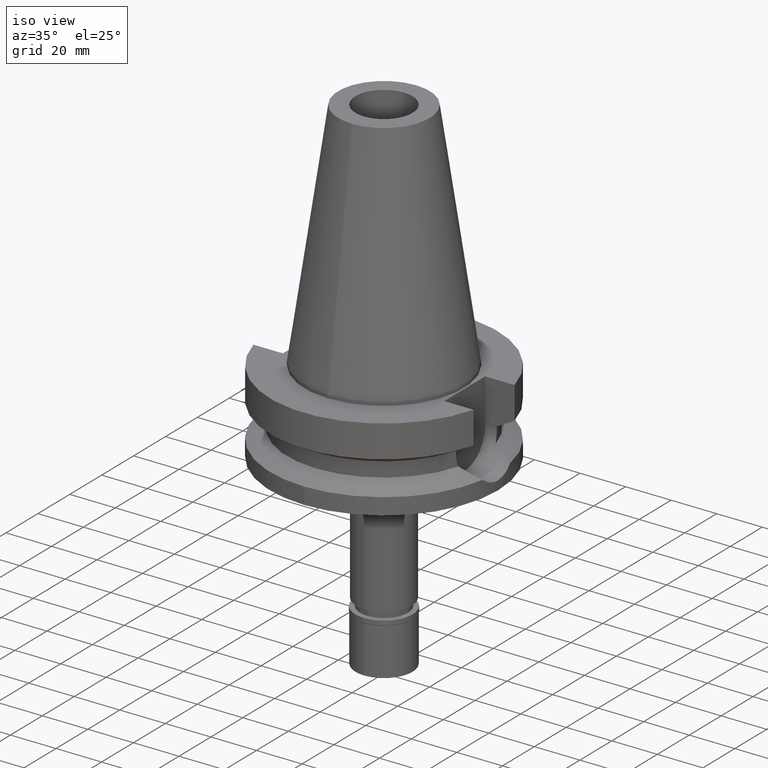
[diagram: clean part render]
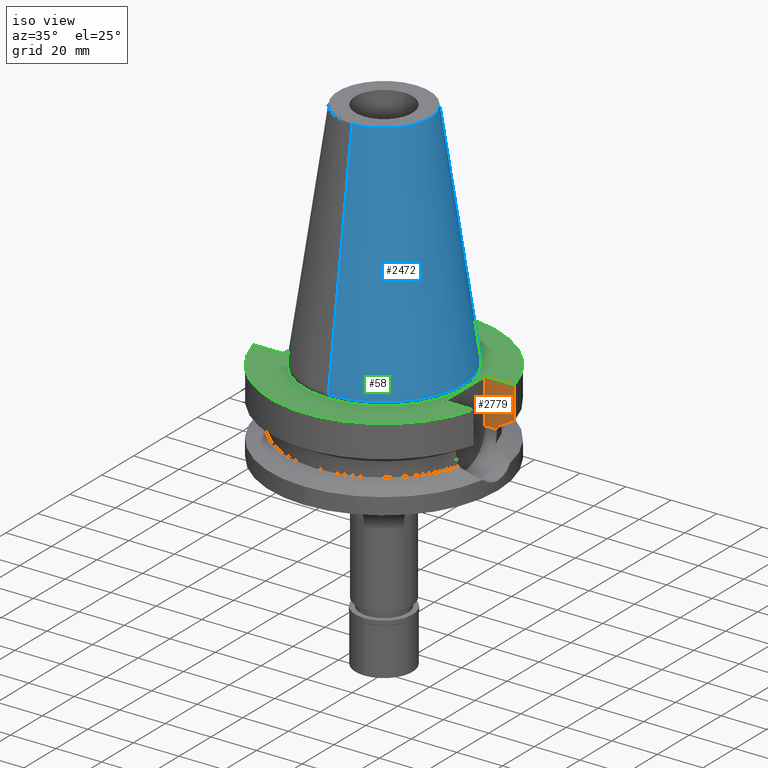
[diagram: same view with three faces highlighted in distinct colors, each labeled with its STEP entity id]
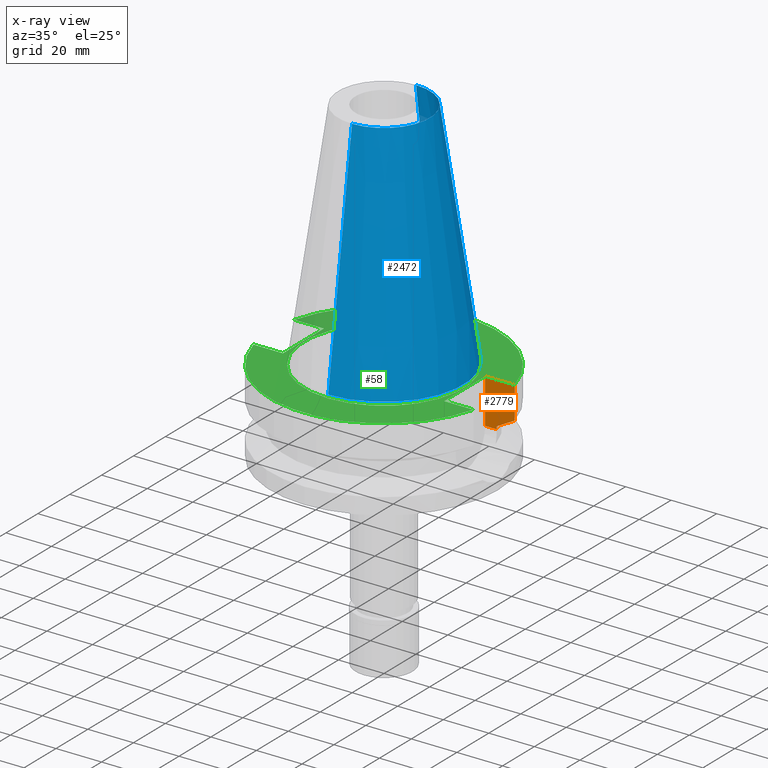
[diagram: x-ray of the same camera — body ghosted, the three highlighted faces saturated]
A machine part, iso view with three faces highlighted in distinct colors.
The next image is the same camera in x-ray (body ghosted, the three faces saturated) — at least one of them is partly hidden behind the body in this view.
Their STEP definitions:

[orange] entity #2779 — the highlighted planar face has unit normal (0, 1, 0).
#19 = ORIENTED_EDGE ( 'NONE', *, *, #1257, .T. ) ;
#29 = VECTOR ( 'NONE', #206, 1000.000000000000000 ) ;
#150 = EDGE_CURVE ( 'NONE', #1797, #913, #1164, .T. ) ;
#163 = ORIENTED_EDGE ( 'NONE', *, *, #1358, .T. ) ;
#206 = DIRECTION ( 'NONE',  ( 0.0000000000000000000, 0.0000000000000000000, -1.000000000000000000 ) ) ;
#269 = VERTEX_POINT ( 'NONE', #1355 ) ;
#300 = VERTEX_POINT ( 'NONE', #2832 ) ;
#316 = CARTESIAN_POINT ( 'NONE',  ( 40.51083188481999997, 12.84999999999999964, -21.14999999999999858 ) ) ;
#369 = PLANE ( 'NONE',  #840 ) ;
#377 = VECTOR ( 'NONE', #2846, 1000.000000000000114 ) ;
#562 = CARTESIAN_POINT ( 'NONE',  ( 40.51083188481999997, 12.84999999999999964, -21.14999999999999858 ) ) ;
#585 = LINE ( 'NONE', #562, #1144 ) ;
#590 = CARTESIAN_POINT ( 'NONE',  ( 48.32056912878999810, 12.85000385484999974, -15.66265770431999726 ) ) ;
#612 = ORIENTED_EDGE ( 'NONE', *, *, #1708, .T. ) ;
#719 = VERTEX_POINT ( 'NONE', #316 ) ;
#732 = EDGE_LOOP ( 'NONE', ( #2876, #2655, #1443, #19, #612, #163 ) ) ;
#817 = DIRECTION ( 'NONE',  ( 1.000000000000000000, 0.0000000000000000000, 0.0000000000000000000 ) ) ;
#840 = AXIS2_PLACEMENT_3D ( 'NONE', #2030, #2992, #817 ) ;
#913 = VERTEX_POINT ( 'NONE', #2214 ) ;
#1054 = CARTESIAN_POINT ( 'NONE',  ( 35.39999999999999858, 12.84999999999999964, -1.500000000000000000 ) ) ;
#1065 = FACE_OUTER_BOUND ( 'NONE', #732, .T. ) ;
#1083 = LINE ( 'NONE', #2764, #2320 ) ;
#1144 = VECTOR ( 'NONE', #1751, 1000.000000000000227 ) ;
#1164 = LINE ( 'NONE', #3061, #377 ) ;
#1257 = EDGE_CURVE ( 'NONE', #269, #300, #1488, .T. ) ;
#1355 = CARTESIAN_POINT ( 'NONE',  ( 35.39999999999999858, 12.84999999999999964, -1.500000000000000000 ) ) ;
#1358 = EDGE_CURVE ( 'NONE', #719, #1706, #585, .T. ) ;
#1443 = ORIENTED_EDGE ( 'NONE', *, *, #1796, .F. ) ;
#1488 = LINE ( 'NONE', #2426, #29 ) ;
#1706 = VERTEX_POINT ( 'NONE', #2321 ) ;
#1708 = EDGE_CURVE ( 'NONE', #300, #719, #1083, .T. ) ;
#1751 = DIRECTION ( 'NONE',  ( 9.450376545189141521E-07, -2.979322488675045288E-06, 0.9999999999951152407 ) ) ;
#1796 = EDGE_CURVE ( 'NONE', #269, #913, #3037, .T. ) ;
#1797 = VERTEX_POINT ( 'NONE', #590 ) ;
#1817 = DIRECTION ( 'NONE',  ( 1.000000000000000000, -3.336643826789999529E-14, 0.0000000000000000000 ) ) ;
#1952 = EDGE_CURVE ( 'NONE', #1797, #1706, #2853, .T. ) ;
#2030 = CARTESIAN_POINT ( 'NONE',  ( 35.39999999999999858, 12.84999999999999964, -21.14999999999999858 ) ) ;
#2158 = CARTESIAN_POINT ( 'NONE',  ( 48.32056912878999810, 12.85000385484999974, -15.66265770431999726 ) ) ;
#2168 = VECTOR ( 'NONE', #2998, 1000.000000000000000 ) ;
#2214 = CARTESIAN_POINT ( 'NONE',  ( 48.32057015392000210, 12.84999999999999964, -1.500000000000000000 ) ) ;
#2320 = VECTOR ( 'NONE', #1817, 1000.000000000000000 ) ;
#2321 = CARTESIAN_POINT ( 'NONE',  ( 40.51083297836999719, 12.84999655245999861, -19.99284571208999850 ) ) ;
#2426 = CARTESIAN_POINT ( 'NONE',  ( 35.39999999999999858, 12.84999999999999964, -1.500000000000000000 ) ) ;
#2655 = ORIENTED_EDGE ( 'NONE', *, *, #150, .T. ) ;
#2764 = CARTESIAN_POINT ( 'NONE',  ( 35.39999999999999858, 12.84999999999999964, -21.14999999999999858 ) ) ;
#2779 = ADVANCED_FACE ( 'NONE', ( #1065 ), #369, .F. ) ;
#2832 = CARTESIAN_POINT ( 'NONE',  ( 35.39999999999999858, 12.84999999999999964, -21.14999999999999858 ) ) ;
#2838 = CARTESIAN_POINT ( 'NONE',  ( 42.90862459538747231, 12.84999309790769395, -18.67324797433769845 ) ) ;
#2846 = DIRECTION ( 'NONE',  ( 7.238254396727712599E-08, -2.721839296048891019E-07, 0.9999999999999603650 ) ) ;
#2853 = B_SPLINE_CURVE_WITH_KNOTS ( 'NONE', 3,
 ( #2158, #3110, #2838, #2890 ),
 .UNSPECIFIED., .F., .F.,
 ( 4, 4 ),
 ( 0.0000000000000000000, 1.000000000000000000 ),
 .UNSPECIFIED. ) ;
#2876 = ORIENTED_EDGE ( 'NONE', *, *, #1952, .F. ) ;
#2890 = CARTESIAN_POINT ( 'NONE',  ( 40.51083297836999719, 12.84999655245999861, -19.99284571208999850 ) ) ;
#2992 = DIRECTION ( 'NONE',  ( -0.0000000000000000000, 1.000000000000000000, 0.0000000000000000000 ) ) ;
#2998 = DIRECTION ( 'NONE',  ( 1.000000000000000000, 0.0000000000000000000, 0.0000000000000000000 ) ) ;
#3037 = LINE ( 'NONE', #1054, #2168 ) ;
#3061 = CARTESIAN_POINT ( 'NONE',  ( 48.32056912878999810, 12.85000385484999974, -15.66265770431999726 ) ) ;
#3110 = CARTESIAN_POINT ( 'NONE',  ( 45.51179872961361639, 12.85000770505238421, -17.22986721895876272 ) ) ;

[blue] entity #2472 — the highlighted conical surface has half-angle 8.297 deg.
#142 = FACE_OUTER_BOUND ( 'NONE', #771, .T. ) ;
#265 = CARTESIAN_POINT ( 'NONE',  ( 0.0000000000000000000, -34.92499999999999716, 4.476419235289000232E-13 ) ) ;
#277 = EDGE_CURVE ( 'NONE', #2784, #2004, #2087, .T. ) ;
#448 = CIRCLE ( 'NONE', #846, 34.92499999999999716 ) ;
#546 = CIRCLE ( 'NONE', #2271, 20.07942971896000017 ) ;
#645 = CARTESIAN_POINT ( 'NONE',  ( 0.0000000000000000000, -20.07942971896000017, 101.7999999999999972 ) ) ;
#647 = DIRECTION ( 'NONE',  ( 0.0000000000000000000, 0.0000000000000000000, -1.000000000000000000 ) ) ;
#688 = VECTOR ( 'NONE', #1752, 1000.000000000000114 ) ;
#771 = EDGE_LOOP ( 'NONE', ( #1835, #2794, #1190, #1254 ) ) ;
#846 = AXIS2_PLACEMENT_3D ( 'NONE', #2090, #2384, #1157 ) ;
#1119 = CARTESIAN_POINT ( 'NONE',  ( 0.0000000000000000000, 1.847992019912999597E-14, 50.89999999999999858 ) ) ;
#1142 = AXIS2_PLACEMENT_3D ( 'NONE', #1119, #647, #1868 ) ;
#1145 = DIRECTION ( 'NONE',  ( 0.0000000000000000000, 0.0000000000000000000, -1.000000000000000000 ) ) ;
#1157 = DIRECTION ( 'NONE',  ( 0.0000000000000000000, 1.000000000000000000, 0.0000000000000000000 ) ) ;
#1190 = ORIENTED_EDGE ( 'NONE', *, *, #1874, .F. ) ;
#1254 = ORIENTED_EDGE ( 'NONE', *, *, #2586, .F. ) ;
#1303 = CARTESIAN_POINT ( 'NONE',  ( 0.0000000000000000000, 20.07942971896000017, 101.7999999999999972 ) ) ;
#1410 = CARTESIAN_POINT ( 'NONE',  ( 0.0000000000000000000, 34.92499999999999716, 4.476419235289000232E-13 ) ) ;
#1623 = DIRECTION ( 'NONE',  ( 0.0000000000000000000, -0.1443043893538948075, -0.9895333461855641000 ) ) ;
#1736 = VERTEX_POINT ( 'NONE', #1303 ) ;
#1752 = DIRECTION ( 'NONE',  ( 0.0000000000000000000, 0.1443043893538948075, -0.9895333461855641000 ) ) ;
#1835 = ORIENTED_EDGE ( 'NONE', *, *, #2944, .T. ) ;
#1868 = DIRECTION ( 'NONE',  ( 0.0000000000000000000, -1.000000000000000000, 0.0000000000000000000 ) ) ;
#1874 = EDGE_CURVE ( 'NONE', #1877, #2004, #448, .T. ) ;
#1877 = VERTEX_POINT ( 'NONE', #1410 ) ;
#2004 = VERTEX_POINT ( 'NONE', #265 ) ;
#2087 = LINE ( 'NONE', #645, #2209 ) ;
#2090 = CARTESIAN_POINT ( 'NONE',  ( 0.0000000000000000000, 1.847992019912999597E-14, 3.979039320256999774E-13 ) ) ;
#2098 = DIRECTION ( 'NONE',  ( 0.0000000000000000000, 1.000000000000000000, 0.0000000000000000000 ) ) ;
#2209 = VECTOR ( 'NONE', #1623, 1000.000000000000114 ) ;
#2271 = AXIS2_PLACEMENT_3D ( 'NONE', #2590, #1145, #2098 ) ;
#2362 = CONICAL_SURFACE ( 'NONE', #1142, 27.50221485948000222, 0.1448099680379422438 ) ;
#2384 = DIRECTION ( 'NONE',  ( 0.0000000000000000000, 0.0000000000000000000, -1.000000000000000000 ) ) ;
#2441 = CARTESIAN_POINT ( 'NONE',  ( 0.0000000000000000000, 20.07942971896000017, 101.7999999999999972 ) ) ;
#2472 = ADVANCED_FACE ( 'NONE', ( #142 ), #2362, .T. ) ;
#2586 = EDGE_CURVE ( 'NONE', #1736, #1877, #3129, .T. ) ;
#2590 = CARTESIAN_POINT ( 'NONE',  ( 0.0000000000000000000, 1.847992019912999597E-14, 101.7999999999999972 ) ) ;
#2784 = VERTEX_POINT ( 'NONE', #3020 ) ;
#2794 = ORIENTED_EDGE ( 'NONE', *, *, #277, .T. ) ;
#2944 = EDGE_CURVE ( 'NONE', #1736, #2784, #546, .T. ) ;
#3020 = CARTESIAN_POINT ( 'NONE',  ( 0.0000000000000000000, -20.07942971896000017, 101.7999999999999972 ) ) ;
#3129 = LINE ( 'NONE', #2441, #688 ) ;

[green] entity #58 — the highlighted planar face has unit normal (0, 0, -1).
#17 = DIRECTION ( 'NONE',  ( 1.000000000000000000, 0.0000000000000000000, 0.0000000000000000000 ) ) ;
#58 = ADVANCED_FACE ( 'NONE', ( #1962, #1232 ), #2675, .F. ) ;
#109 = EDGE_CURVE ( 'NONE', #2141, #149, #978, .T. ) ;
#149 = VERTEX_POINT ( 'NONE', #1637 ) ;
#173 = VECTOR ( 'NONE', #2443, 1000.000000000000000 ) ;
#177 = AXIS2_PLACEMENT_3D ( 'NONE', #2239, #1794, #2757 ) ;
#187 = VERTEX_POINT ( 'NONE', #619 ) ;
#269 = VERTEX_POINT ( 'NONE', #1355 ) ;
#324 = VECTOR ( 'NONE', #17, 1000.000000000000000 ) ;
#357 = CARTESIAN_POINT ( 'NONE',  ( 0.0000000000000000000, 2.601639660108999860E-14, -1.500000000000000000 ) ) ;
#384 = ORIENTED_EDGE ( 'NONE', *, *, #1344, .F. ) ;
#475 = CARTESIAN_POINT ( 'NONE',  ( -48.32057015392000210, 12.84999999999999964, -1.500000000000000000 ) ) ;
#516 = CARTESIAN_POINT ( 'NONE',  ( 35.39999999999999858, -12.84999999999999964, -1.500000000000000000 ) ) ;
#519 = DIRECTION ( 'NONE',  ( 0.0000000000000000000, 0.0000000000000000000, 1.000000000000000000 ) ) ;
#524 = ORIENTED_EDGE ( 'NONE', *, *, #912, .F. ) ;
#527 = CARTESIAN_POINT ( 'NONE',  ( 0.0000000000000000000, 1.206277097159999845E-14, -1.500000000000000000 ) ) ;
#545 = ORIENTED_EDGE ( 'NONE', *, *, #721, .T. ) ;
#548 = CARTESIAN_POINT ( 'NONE',  ( -35.39999999999999858, -12.84999999999999964, -1.500000000000000000 ) ) ;
#550 = AXIS2_PLACEMENT_3D ( 'NONE', #357, #1233, #2359 ) ;
#565 = LINE ( 'NONE', #711, #173 ) ;
#595 = CARTESIAN_POINT ( 'NONE',  ( 35.39999999999999858, 12.84999999999999964, -1.500000000000000000 ) ) ;
#619 = CARTESIAN_POINT ( 'NONE',  ( -35.39999999999999858, 12.84999999999999964, -1.500000000000000000 ) ) ;
#628 = CARTESIAN_POINT ( 'NONE',  ( 0.0000000000000000000, 34.92499999999999716, -1.500000000000000000 ) ) ;
#650 = ORIENTED_EDGE ( 'NONE', *, *, #109, .F. ) ;
#682 = EDGE_CURVE ( 'NONE', #826, #2983, #1904, .T. ) ;
#689 = CIRCLE ( 'NONE', #177, 50.00000000000000000 ) ;
#711 = CARTESIAN_POINT ( 'NONE',  ( -35.39999999999999858, -12.84999999999999964, -1.500000000000000000 ) ) ;
#721 = EDGE_CURVE ( 'NONE', #2909, #1953, #2258, .T. ) ;
#789 = DIRECTION ( 'NONE',  ( 0.0000000000000000000, 0.0000000000000000000, 1.000000000000000000 ) ) ;
#794 = DIRECTION ( 'NONE',  ( -1.000000000000000000, 0.0000000000000000000, 0.0000000000000000000 ) ) ;
#826 = VERTEX_POINT ( 'NONE', #2492 ) ;
#841 = EDGE_CURVE ( 'NONE', #2909, #187, #565, .T. ) ;
#912 = EDGE_CURVE ( 'NONE', #269, #2141, #2248, .T. ) ;
#913 = VERTEX_POINT ( 'NONE', #2214 ) ;
#947 = CARTESIAN_POINT ( 'NONE',  ( -48.32057015392000210, -12.84999999999999964, -1.500000000000000000 ) ) ;
#967 = LINE ( 'NONE', #2002, #1253 ) ;
#978 = LINE ( 'NONE', #516, #324 ) ;
#1050 = AXIS2_PLACEMENT_3D ( 'NONE', #1775, #519, #1227 ) ;
#1054 = CARTESIAN_POINT ( 'NONE',  ( 35.39999999999999858, 12.84999999999999964, -1.500000000000000000 ) ) ;
#1081 = EDGE_CURVE ( 'NONE', #1156, #913, #2465, .T. ) ;
#1156 = VERTEX_POINT ( 'NONE', #475 ) ;
#1227 = DIRECTION ( 'NONE',  ( 0.0000000000000000000, -1.000000000000000000, 0.0000000000000000000 ) ) ;
#1232 = FACE_BOUND ( 'NONE', #1343, .T. ) ;
#1233 = DIRECTION ( 'NONE',  ( 0.0000000000000000000, 0.0000000000000000000, -1.000000000000000000 ) ) ;
#1253 = VECTOR ( 'NONE', #794, 1000.000000000000000 ) ;
#1255 = CARTESIAN_POINT ( 'NONE',  ( 0.0000000000000000000, 2.601639660108999860E-14, -1.500000000000000000 ) ) ;
#1284 = ORIENTED_EDGE ( 'NONE', *, *, #1796, .T. ) ;
#1287 = CARTESIAN_POINT ( 'NONE',  ( 35.39999999999999858, -12.84999999999999964, -1.500000000000000000 ) ) ;
#1343 = EDGE_LOOP ( 'NONE', ( #1519, #1871 ) ) ;
#1344 = EDGE_CURVE ( 'NONE', #149, #1953, #689, .T. ) ;
#1355 = CARTESIAN_POINT ( 'NONE',  ( 35.39999999999999858, 12.84999999999999964, -1.500000000000000000 ) ) ;
#1484 = DIRECTION ( 'NONE',  ( 0.0000000000000000000, 0.0000000000000000000, -1.000000000000000000 ) ) ;
#1519 = ORIENTED_EDGE ( 'NONE', *, *, #2099, .F. ) ;
#1573 = AXIS2_PLACEMENT_3D ( 'NONE', #1255, #789, #2411 ) ;
#1620 = EDGE_CURVE ( 'NONE', #187, #1156, #967, .T. ) ;
#1637 = CARTESIAN_POINT ( 'NONE',  ( 48.32057015392000210, -12.84999999999999964, -1.500000000000000000 ) ) ;
#1667 = CIRCLE ( 'NONE', #1573, 34.92499999999999716 ) ;
#1775 = CARTESIAN_POINT ( 'NONE',  ( 0.0000000000000000000, 2.601639660108999860E-14, -1.500000000000000000 ) ) ;
#1794 = DIRECTION ( 'NONE',  ( 0.0000000000000000000, 0.0000000000000000000, -1.000000000000000000 ) ) ;
#1796 = EDGE_CURVE ( 'NONE', #269, #913, #3037, .T. ) ;
#1848 = CARTESIAN_POINT ( 'NONE',  ( -35.39999999999999858, -12.84999999999999964, -1.500000000000000000 ) ) ;
#1871 = ORIENTED_EDGE ( 'NONE', *, *, #682, .F. ) ;
#1904 = CIRCLE ( 'NONE', #1050, 34.92499999999999716 ) ;
#1953 = VERTEX_POINT ( 'NONE', #947 ) ;
#1955 = DIRECTION ( 'NONE',  ( -1.000000000000000000, 0.0000000000000000000, 0.0000000000000000000 ) ) ;
#1962 = FACE_OUTER_BOUND ( 'NONE', #2988, .T. ) ;
#2002 = CARTESIAN_POINT ( 'NONE',  ( -35.39999999999999858, 12.84999999999999964, -1.500000000000000000 ) ) ;
#2099 = EDGE_CURVE ( 'NONE', #2983, #826, #1667, .T. ) ;
#2141 = VERTEX_POINT ( 'NONE', #1287 ) ;
#2168 = VECTOR ( 'NONE', #2998, 1000.000000000000000 ) ;
#2214 = CARTESIAN_POINT ( 'NONE',  ( 48.32057015392000210, 12.84999999999999964, -1.500000000000000000 ) ) ;
#2239 = CARTESIAN_POINT ( 'NONE',  ( 0.0000000000000000000, 2.601639660108999860E-14, -1.500000000000000000 ) ) ;
#2248 = LINE ( 'NONE', #595, #2866 ) ;
#2258 = LINE ( 'NONE', #548, #2315 ) ;
#2315 = VECTOR ( 'NONE', #1955, 1000.000000000000000 ) ;
#2359 = DIRECTION ( 'NONE',  ( 0.0000000000000000000, 1.000000000000000000, 0.0000000000000000000 ) ) ;
#2411 = DIRECTION ( 'NONE',  ( 0.0000000000000000000, 1.000000000000000000, 0.0000000000000000000 ) ) ;
#2443 = DIRECTION ( 'NONE',  ( 0.0000000000000000000, 1.000000000000000000, 0.0000000000000000000 ) ) ;
#2452 = DIRECTION ( 'NONE',  ( 0.0000000000000000000, -1.000000000000000000, 0.0000000000000000000 ) ) ;
#2465 = CIRCLE ( 'NONE', #550, 50.00000000000000000 ) ;
#2492 = CARTESIAN_POINT ( 'NONE',  ( 0.0000000000000000000, -34.92499999999999716, -1.500000000000000000 ) ) ;
#2614 = ORIENTED_EDGE ( 'NONE', *, *, #1620, .F. ) ;
#2675 = PLANE ( 'NONE',  #3046 ) ;
#2757 = DIRECTION ( 'NONE',  ( 0.0000000000000000000, -1.000000000000000000, 0.0000000000000000000 ) ) ;
#2825 = DIRECTION ( 'NONE',  ( 0.0000000000000000000, -1.000000000000000000, 0.0000000000000000000 ) ) ;
#2866 = VECTOR ( 'NONE', #2825, 1000.000000000000000 ) ;
#2909 = VERTEX_POINT ( 'NONE', #1848 ) ;
#2983 = VERTEX_POINT ( 'NONE', #628 ) ;
#2988 = EDGE_LOOP ( 'NONE', ( #545, #384, #650, #524, #1284, #3067, #2614, #3001 ) ) ;
#2998 = DIRECTION ( 'NONE',  ( 1.000000000000000000, 0.0000000000000000000, 0.0000000000000000000 ) ) ;
#3001 = ORIENTED_EDGE ( 'NONE', *, *, #841, .F. ) ;
#3037 = LINE ( 'NONE', #1054, #2168 ) ;
#3046 = AXIS2_PLACEMENT_3D ( 'NONE', #527, #1484, #2452 ) ;
#3067 = ORIENTED_EDGE ( 'NONE', *, *, #1081, .F. ) ;